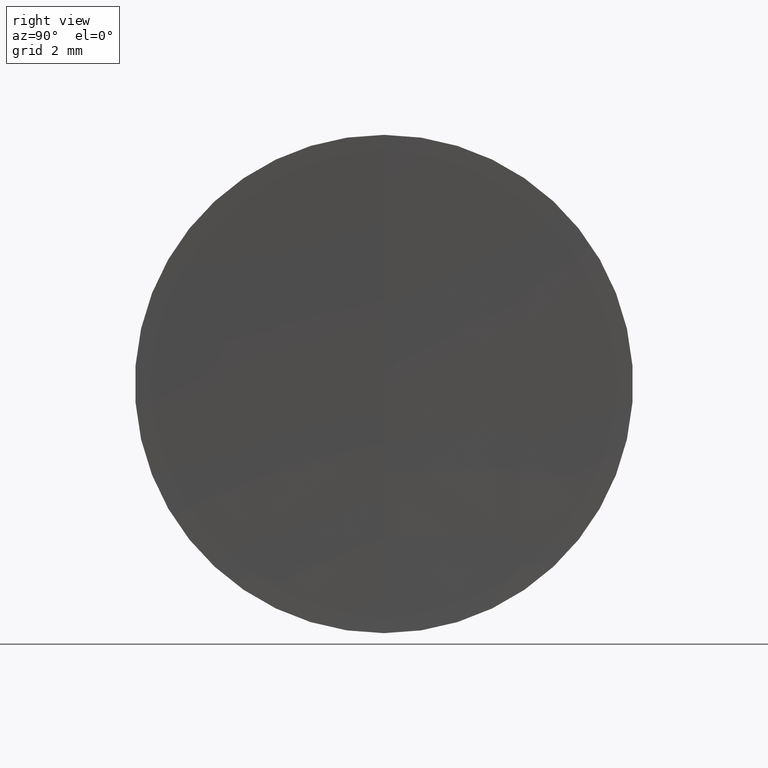
[diagram: clean part render]
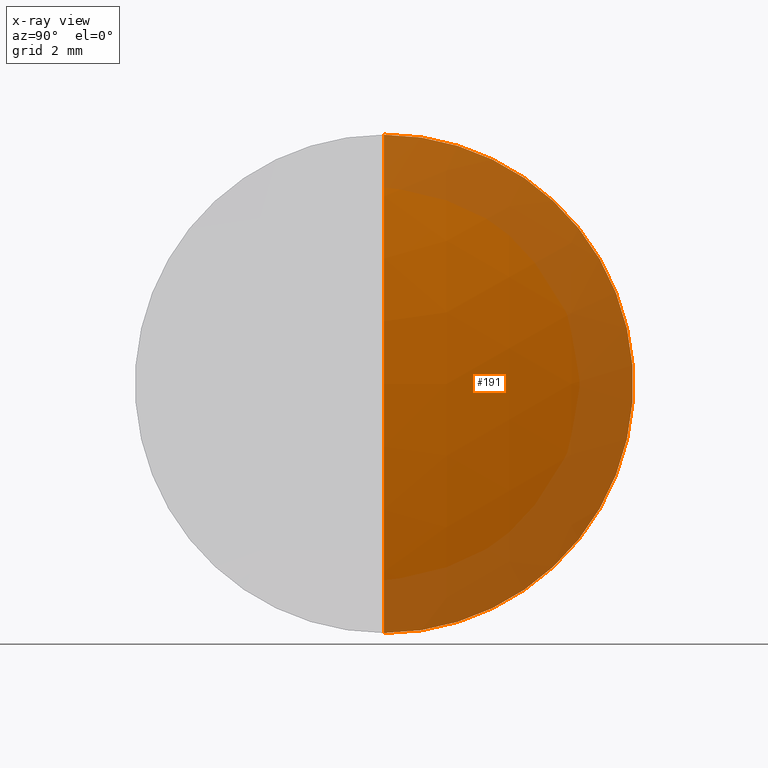
[diagram: x-ray — body ghosted, one internal face saturated and labeled with its STEP entity id]
A machine part, right view, then the same camera in x-ray: the body is ghosted and one INTERNAL B-rep face — a face not visible from any outside direction — is saturated and labeled: STEP entity #191.
In plain terms, the highlighted spherical surface has radius 26.8 mm.
Its self-contained STEP definition (entity closure, byte-faithful):
#3 = EDGE_CURVE ( 'NONE', #342, #303, #123, .T. ) ;
#29 = CARTESIAN_POINT ( 'NONE',  ( 287.5089566504702200, 0.0000000000000000000, -1.828420241096161500E-015 ) ) ;
#33 = DIRECTION ( 'NONE',  ( -0.0000000000000000000, 1.000000000000000000, 1.224646799147353200E-016 ) ) ;
#40 = FACE_OUTER_BOUND ( 'NONE', #233, .T. ) ;
#58 = EDGE_CURVE ( 'NONE', #342, #213, #203, .T. ) ;
#98 = EDGE_CURVE ( 'NONE', #213, #303, #251, .T. ) ;
#106 = DIRECTION ( 'NONE',  ( 0.0000000000000000000, -1.000000000000000000, 0.0000000000000000000 ) ) ;
#123 = CIRCLE ( 'NONE', #294, 26.79999999999999000 ) ;
#135 = AXIS2_PLACEMENT_3D ( 'NONE', #278, #106, #252 ) ;
#139 = CARTESIAN_POINT ( 'NONE',  ( 260.7089566504702100, 0.0000000000000000000, -3.469446951953614200E-015 ) ) ;
#140 = CARTESIAN_POINT ( 'NONE',  ( 286.7458055381524700, 7.776507174585689200E-016, -6.349999999999996100 ) ) ;
#146 = CARTESIAN_POINT ( 'NONE',  ( 286.7458055381524700, 0.0000000000000000000, 6.349999999999996100 ) ) ;
#147 = ORIENTED_EDGE ( 'NONE', *, *, #3, .T. ) ;
#169 = CARTESIAN_POINT ( 'NONE',  ( 286.7458055381524700, 0.0000000000000000000, 0.0000000000000000000 ) ) ;
#176 = SPHERICAL_SURFACE ( 'NONE', #202, 26.79999999999999000 ) ;
#191 = ADVANCED_FACE ( 'NONE', ( #40 ), #176, .T. ) ;
#202 = AXIS2_PLACEMENT_3D ( 'NONE', #243, #321, #270 ) ;
#203 = CIRCLE ( 'NONE', #135, 26.79999999999999000 ) ;
#213 = VERTEX_POINT ( 'NONE', #146 ) ;
#216 = DIRECTION ( 'NONE',  ( 0.0000000000000000000, 0.0000000000000000000, 1.000000000000000000 ) ) ;
#233 = EDGE_LOOP ( 'NONE', ( #272, #147, #269 ) ) ;
#243 = CARTESIAN_POINT ( 'NONE',  ( 260.7089566504702100, 0.0000000000000000000, -3.469446951953614200E-015 ) ) ;
#251 = CIRCLE ( 'NONE', #255, 6.349999999999996100 ) ;
#252 = DIRECTION ( 'NONE',  ( 0.0000000000000000000, 0.0000000000000000000, -1.000000000000000000 ) ) ;
#255 = AXIS2_PLACEMENT_3D ( 'NONE', #169, #317, #216 ) ;
#269 = ORIENTED_EDGE ( 'NONE', *, *, #98, .F. ) ;
#270 = DIRECTION ( 'NONE',  ( 0.0000000000000000000, 0.0000000000000000000, 1.000000000000000000 ) ) ;
#272 = ORIENTED_EDGE ( 'NONE', *, *, #58, .F. ) ;
#278 = CARTESIAN_POINT ( 'NONE',  ( 260.7089566504702100, 0.0000000000000000000, -3.469446951953614200E-015 ) ) ;
#294 = AXIS2_PLACEMENT_3D ( 'NONE', #139, #33, #341 ) ;
#303 = VERTEX_POINT ( 'NONE', #140 ) ;
#317 = DIRECTION ( 'NONE',  ( -1.000000000000000000, -0.0000000000000000000, -0.0000000000000000000 ) ) ;
#321 = DIRECTION ( 'NONE',  ( 0.0000000000000000000, 1.000000000000000000, 0.0000000000000000000 ) ) ;
#341 = DIRECTION ( 'NONE',  ( 0.0000000000000000000, -1.224646799147353200E-016, 1.000000000000000000 ) ) ;
#342 = VERTEX_POINT ( 'NONE', #29 ) ;